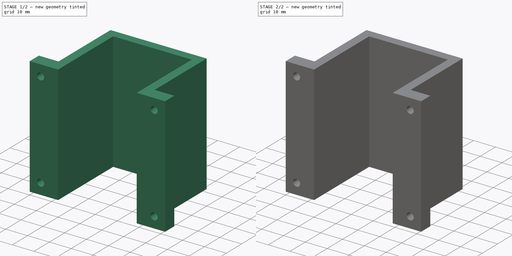
[diagram: build sequence overview — one tinted view per stage of 2, left to right]
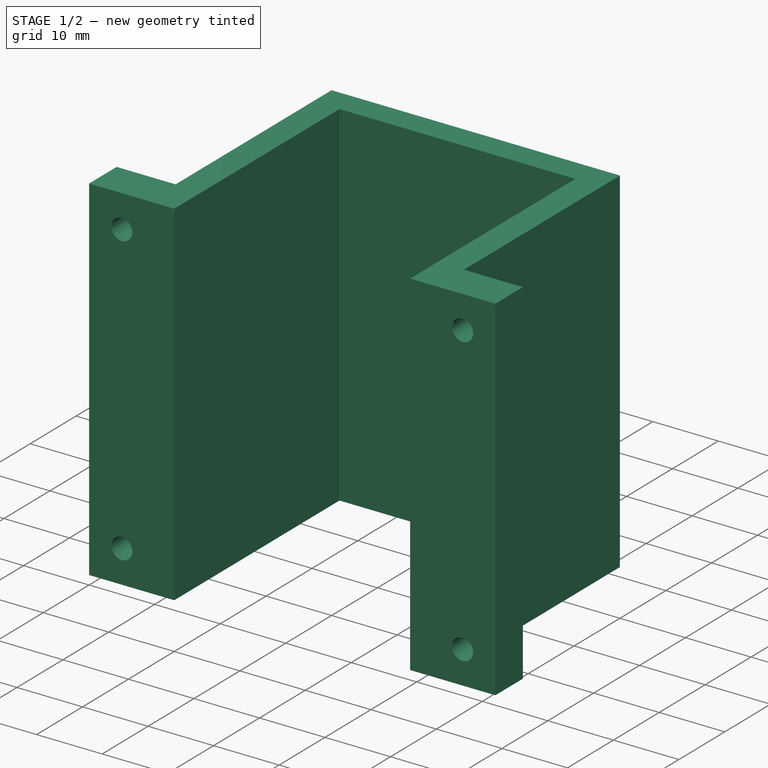
[diagram: stage 1 of 2 — iso view after this stage's code; geometry added in this stage tinted green]
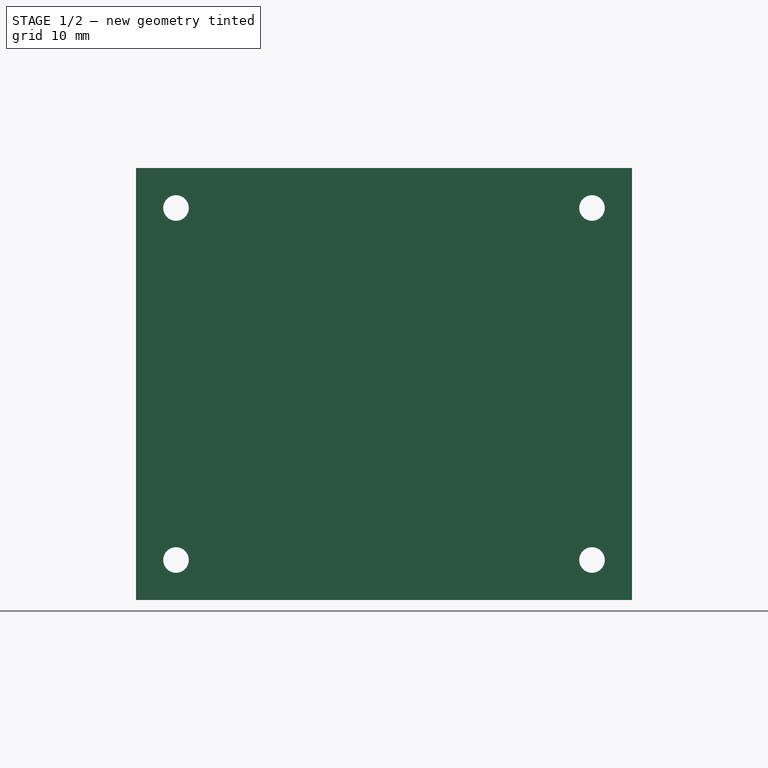
[diagram: stage 1 of 2 — front view after this stage's code; geometry added in this stage tinted green]
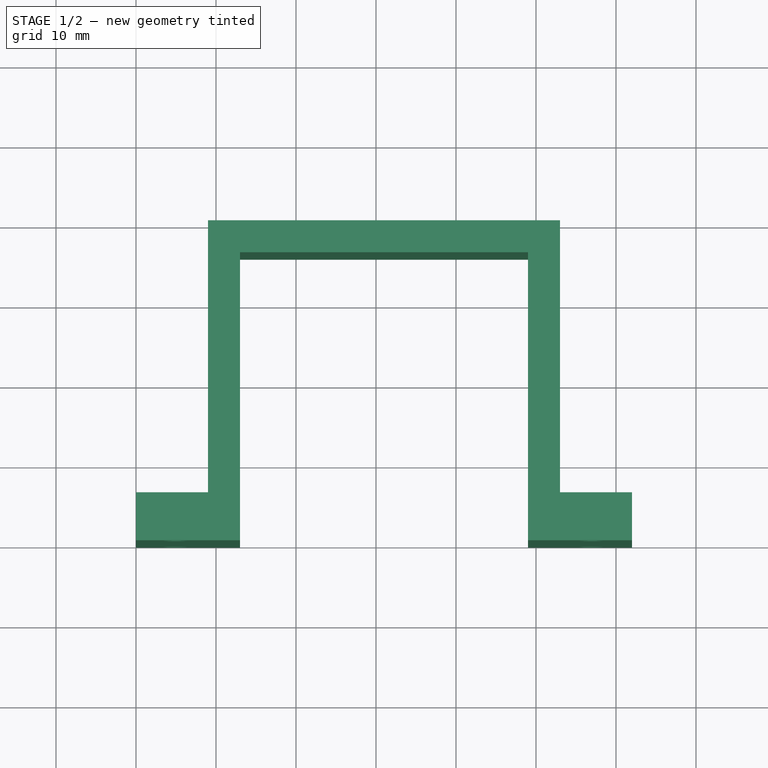
[diagram: stage 1 of 2 — top view after this stage's code; geometry added in this stage tinted green]
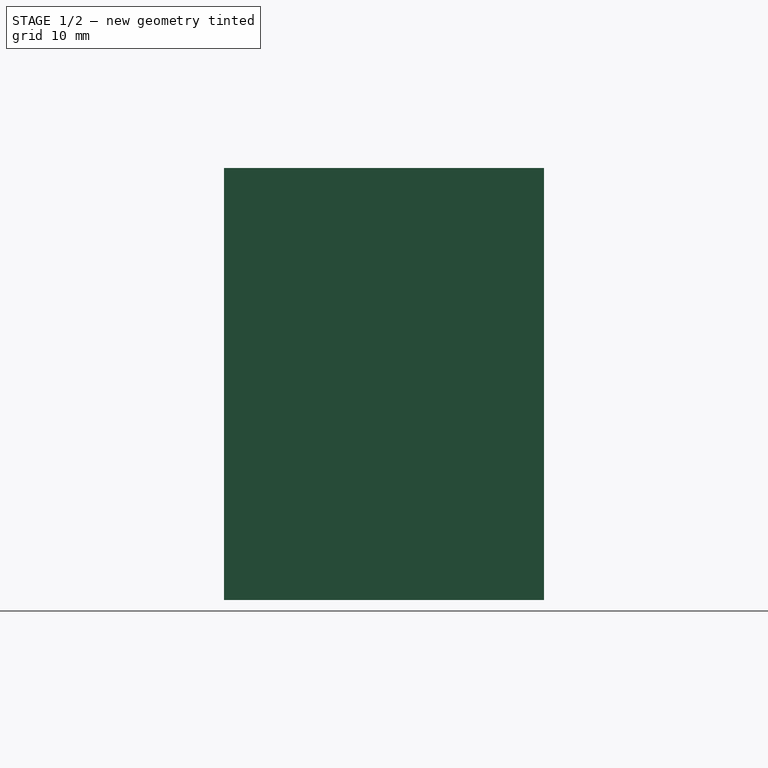
[diagram: stage 1 of 2 — right view after this stage's code; geometry added in this stage tinted green]
FCSTD DOCUMENT  (FreeCAD 0.19R24267 (Git))
Label: revctrlmount
License: All rights reserved
LicenseURL: http://en.wikipedia.org/wiki/All_rights_reserved
objects: Sketcher::SketchObject×3, PartDesign::Pocket×2, PartDesign::Pad×1, PartDesign::Body×1
note: 10 computed .brp shape members not serialized (recipe doc carries the construction recipe); baked Part::Feature solids carry a one-line shape summary decoded from their .brp

FEATURE [Sketcher::SketchObject] Sketch
  FullyConstrained = true
  MapMode = 5
  Support = -> [XY_Plane]
  sketch-geometry (12):
    g0: LineSegment StartX=0 StartY=0 StartZ=0 EndX=0 EndY=6 EndZ=0
    g1: LineSegment StartX=0 StartY=6 StartZ=0 EndX=9 EndY=6 EndZ=0
    g2: LineSegment StartX=9 StartY=6 StartZ=0 EndX=9 EndY=40 EndZ=0
    g3: LineSegment StartX=9 StartY=40 StartZ=0 EndX=53 EndY=40 EndZ=0
    g4: LineSegment StartX=53 StartY=40 StartZ=0 EndX=53 EndY=6 EndZ=0
    g5: LineSegment StartX=53 StartY=6 StartZ=0 EndX=62 EndY=6 EndZ=0
    g6: LineSegment StartX=62 StartY=6 StartZ=0 EndX=62 EndY=0 EndZ=0
    g7: LineSegment StartX=62 StartY=0 StartZ=0 EndX=49 EndY=0 EndZ=0
    g8: LineSegment StartX=49 StartY=0 StartZ=0 EndX=49 EndY=36 EndZ=0
    g9: LineSegment StartX=49 StartY=36 StartZ=0 EndX=13 EndY=36 EndZ=0
    g10: LineSegment StartX=13 StartY=36 StartZ=0 EndX=13 EndY=0 EndZ=0
    g11: LineSegment StartX=13 StartY=0 StartZ=0 EndX=0 EndY=0 EndZ=0
  constraints (35):
    c: Coincident(g0,g1)
    c: Coincident(g1,g2)
    c: Coincident(g2,g3)
    c: Coincident(g3,g4)
    c: Coincident(g4,g5)
    c: Coincident(g5,g6)
    c: Coincident(g6,g7)
    c: Coincident(g7,g8)
    c: Coincident(g8,g9)
    c: Coincident(g9,g10)
    c: Coincident(g10,g11)
    c: Coincident(g11,g0)
    c: Horizontal(g11)
    c: Horizontal(g7)
    c: Horizontal(g9)
    c: Horizontal(g3)
    c: Horizontal(g1)
    c: Horizontal(g5)
    c: Vertical(g0)
    c: Vertical(g2)
    c: Vertical(g10)
    c: Vertical(g8)
    c: Vertical(g4)
    c: Vertical(g6)
    c: Coincident(g0,g-1)
    c: DistanceY(g0,g0) = 6
    c: DistanceX(g1,g1) = 9
    c: DistanceX(g11,g11) = 13
    c: DistanceY(g10,g10) = 36
    c: DistanceY(g9,g2) = 4
    c: DistanceY(g10,g7) = 0
    c: DistanceX(g7,g7) = 13
    c: DistanceY(g6,g5) = 6
    c: DistanceX(g4,g5) = 9
    c: DistanceX(g0,g6) = 62
FEATURE [PartDesign::Pad] Pad
  Direction = (1,1,1)
  Length = 54
  Length2 = 100
  Profile = -> Sketch
  Type = 0
FEATURE [Sketcher::SketchObject] Sketch001
  FullyConstrained = true
  MapMode = 5
  Placement = pos=(0,0,0) rot=(1,0,0;1.5708rad)
  Support = -> [Pad]
  sketch-geometry (4):
    g0: Circle CenterX=5 CenterY=5 CenterZ=0 NormalX=0 NormalY=0 NormalZ=1 AngleXU=0 Radius=1.6
    g1: Circle CenterX=57 CenterY=5 CenterZ=0 NormalX=0 NormalY=0 NormalZ=1 AngleXU=0 Radius=1.6
    g2: Circle CenterX=57 CenterY=49 CenterZ=0 NormalX=0 NormalY=0 NormalZ=1 AngleXU=0 Radius=1.6
    g3: Circle CenterX=5 CenterY=49 CenterZ=0 NormalX=0 NormalY=0 NormalZ=1 AngleXU=0 Radius=1.6
  constraints (12):
    c: DistanceX(g3,g2) = 52
    c: DistanceY(g0,g3) = 44
    c: DistanceY(g-1,g0) = 5
    c: DistanceX(g-1,g0) = 5
    c: DistanceX(g3,g0) = 0
    c: DistanceY(g2,g3) = 0
    c: DistanceX(g1,g2) = 0
    c: DistanceY(g0,g1) = 0
    c: Radius(g3) = 1.6
    c: Equal(g3,g2)
    c: Equal(g3,g1)
    c: Equal(g3,g0)
FEATURE [PartDesign::Pocket] Pocket
  BaseFeature = -> Pad
  Length = 6
  Length2 = 100
  Profile = -> Sketch001
  Type = 0
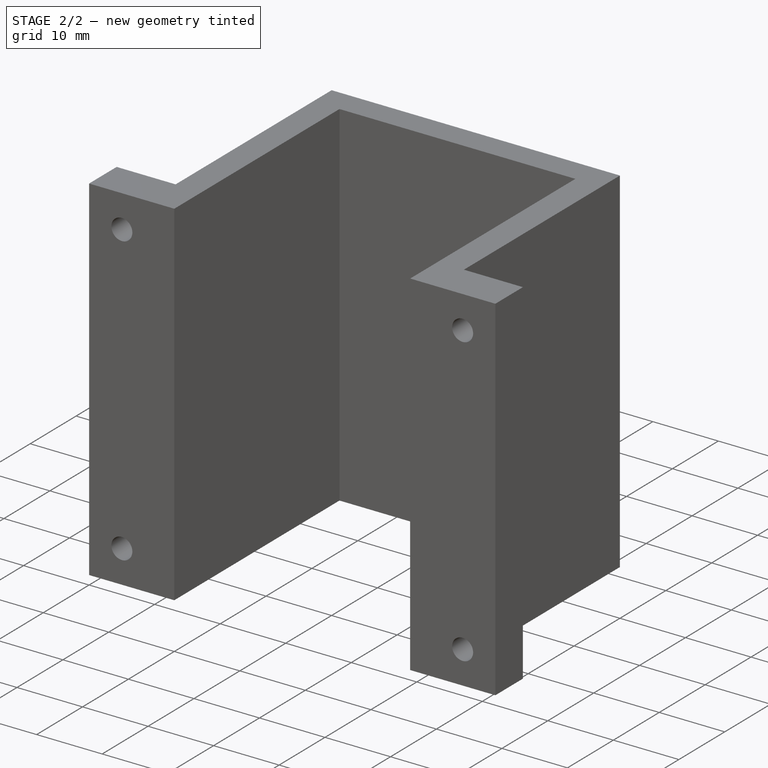
[diagram: stage 2 of 2 — iso view after this stage's code; geometry added in this stage tinted green]
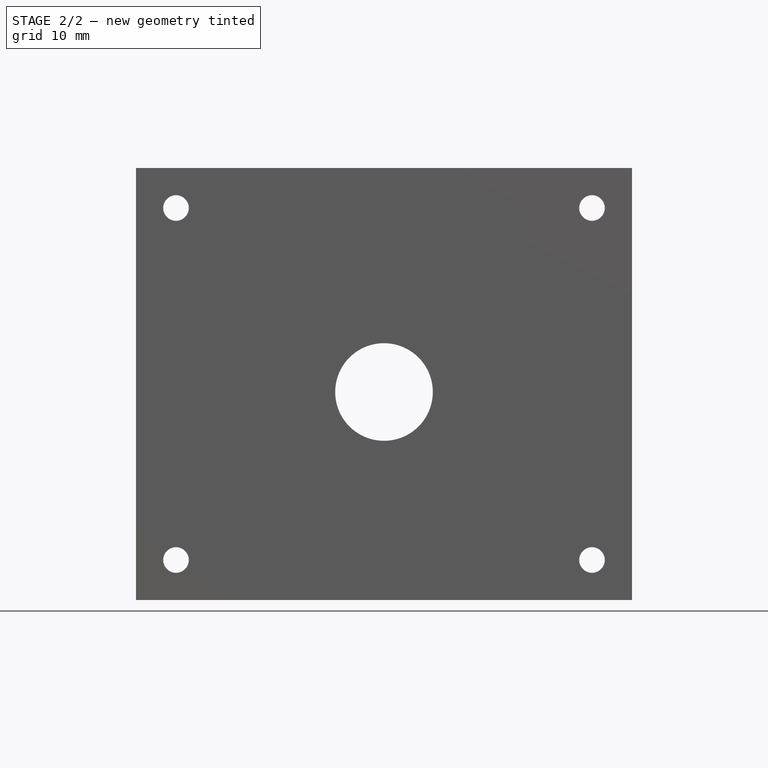
[diagram: stage 2 of 2 — front view after this stage's code; geometry added in this stage tinted green]
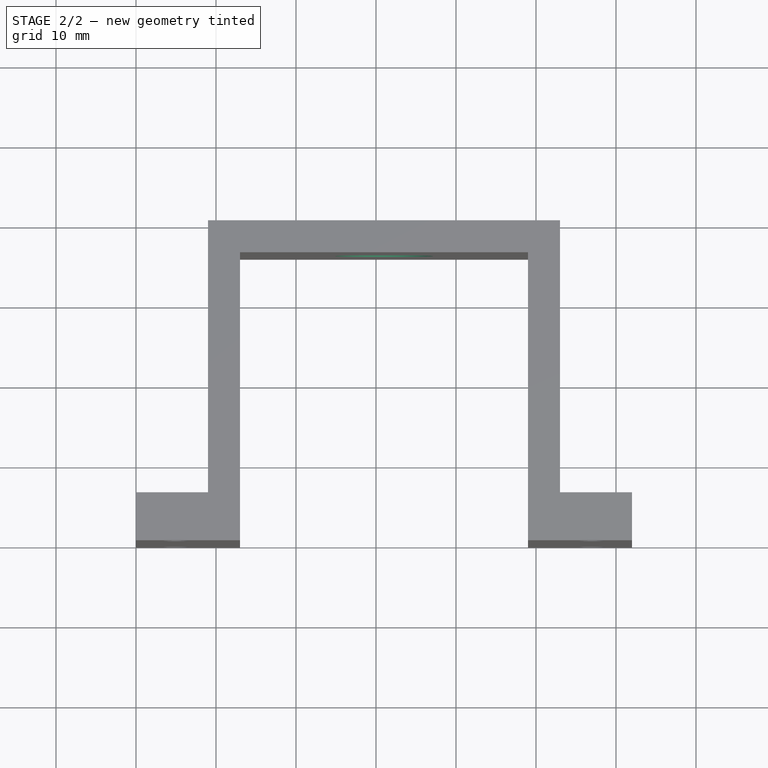
[diagram: stage 2 of 2 — top view after this stage's code; geometry added in this stage tinted green]
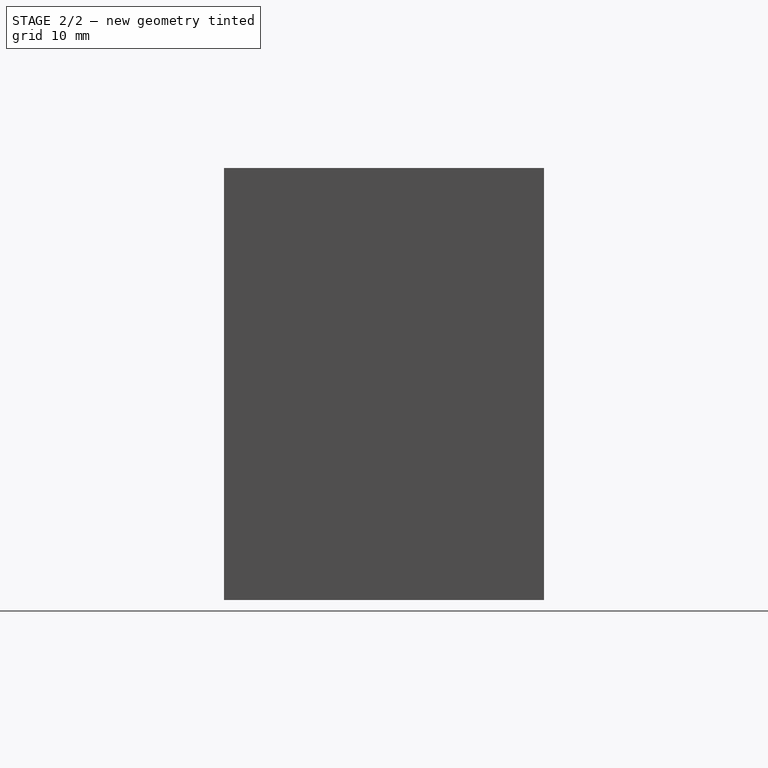
[diagram: stage 2 of 2 — right view after this stage's code; geometry added in this stage tinted green]
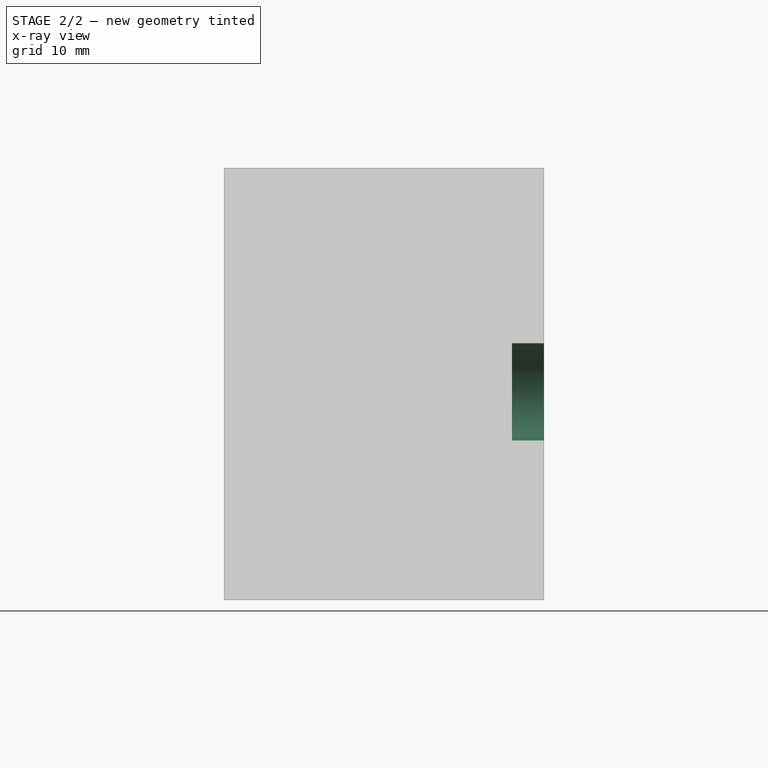
[diagram: stage 2 of 2 — x-ray composite at the right view; earlier geometry ghosted, this stage's added geometry solid]
FEATURE [Sketcher::SketchObject] Sketch002
  FullyConstrained = true
  MapMode = 5
  Placement = pos=(0,40,0) rot=(0,0.707107,0.707107;3.14159rad)
  Support = -> [Pocket]
  sketch-geometry (1):
    g0: Circle CenterX=-31 CenterY=26 CenterZ=0 NormalX=0 NormalY=0 NormalZ=1 AngleXU=0 Radius=6.1
  constraints (3):
    c: DistanceX(g0,g-1) = 31
    c: DistanceY(g-1,g0) = 26
    c: Radius(g0) = 6.1
FEATURE [PartDesign::Pocket] Pocket001
  BaseFeature = -> Pocket
  Length = 5
  Length2 = 100
  Profile = -> Sketch002
  Type = 0
FEATURE [PartDesign::Body] Body
  Group = -> [Sketch,Pad,Sketch001,Pocket,Sketch002,Pocket001]
  Origin = -> Origin
  Tip = -> Pocket001
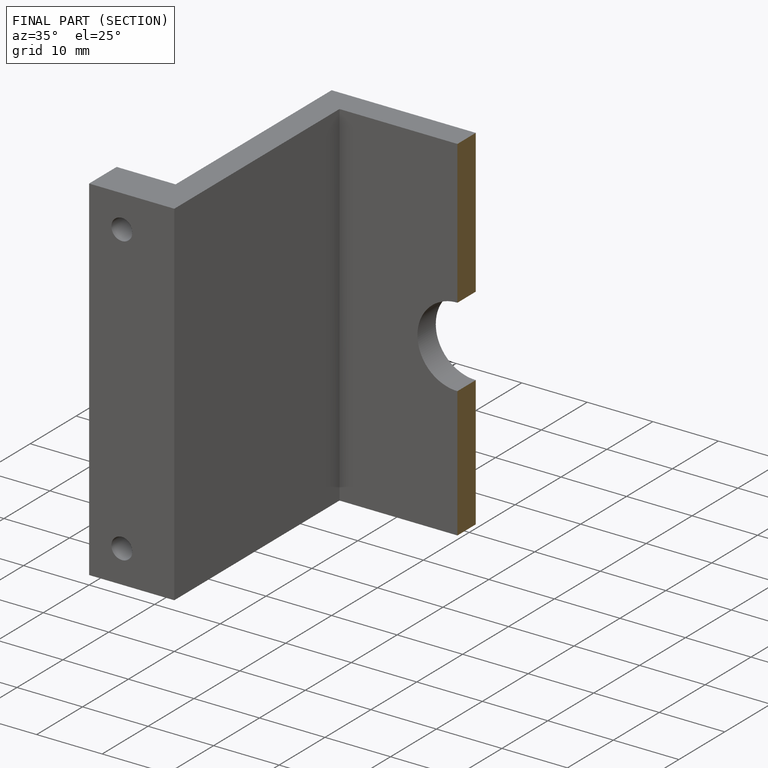
[diagram: finished part — half-section view (interior)]
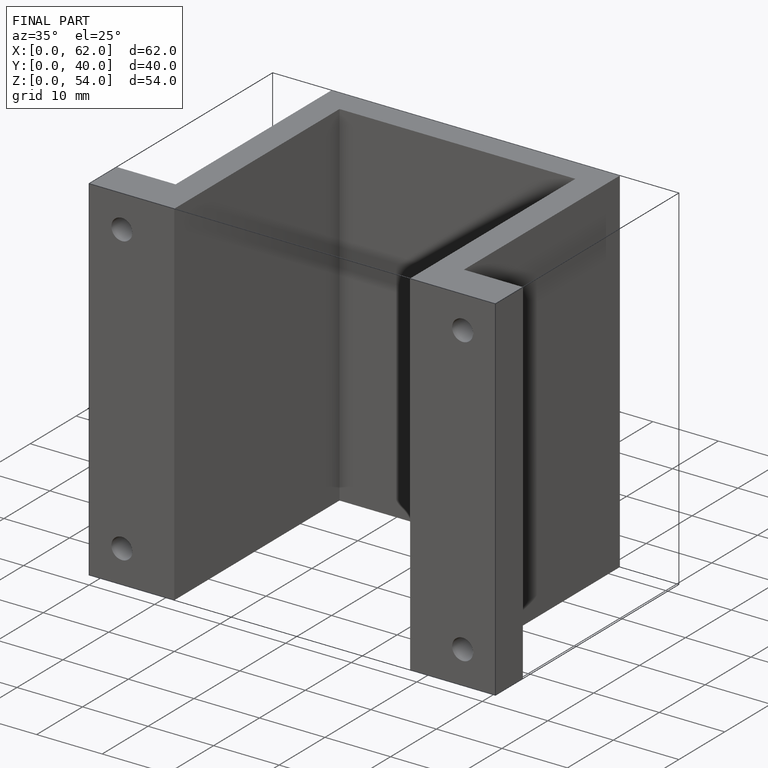
[diagram: finished part — iso view with bounding-box wireframe]
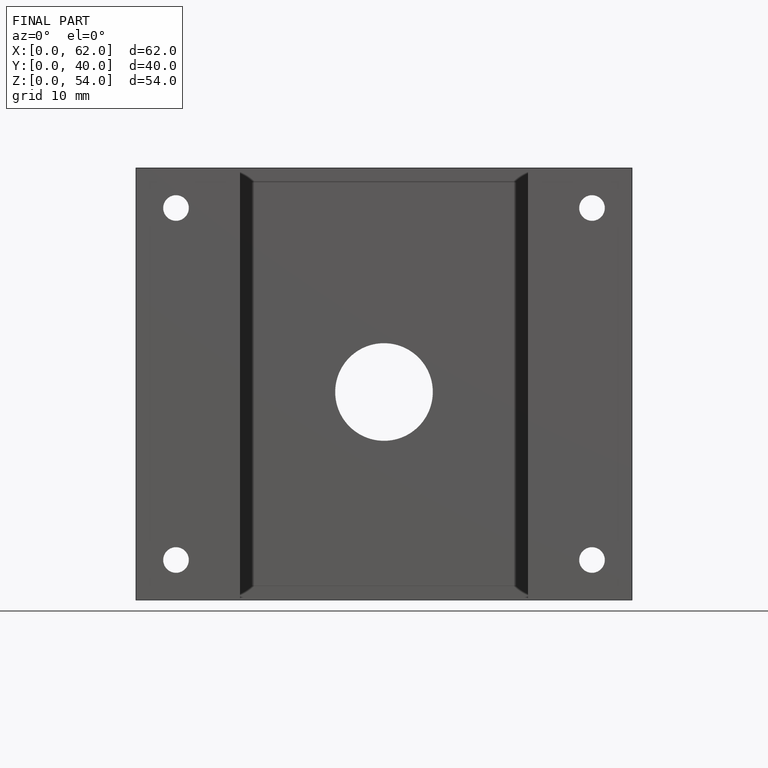
[diagram: finished part — front view with bounding-box wireframe]
